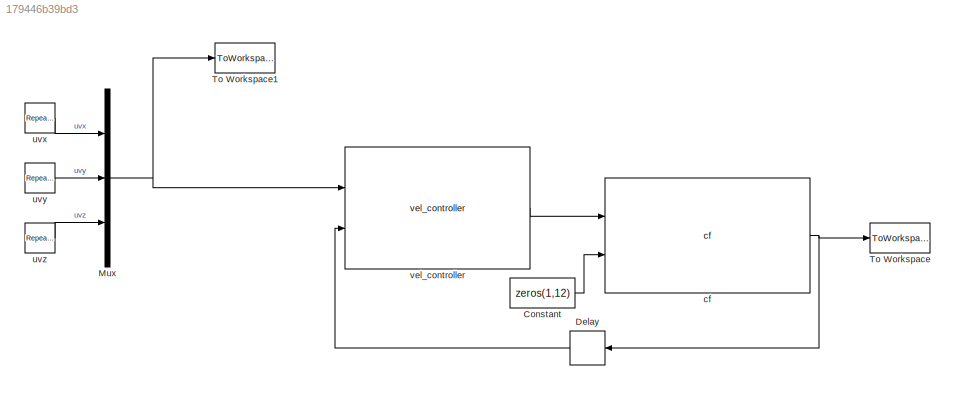
MODEL slx_179446b39bd3
KIND model
CONFIG AbsTol = auto
CONFIG EnableMultiTasking = off
CONFIG FixedStep = continuous_h
CONFIG MaxStep = auto
CONFIG MinStep = auto
CONFIG RelTol = 1e-3
CONFIG SampleTimeConstraint = Unconstrained
CONFIG Solver = FixedStepAuto
CONFIG SolverName = FixedStepAuto
CONFIG StartTime = 0.0
CONFIG StopFcn = res_vel_test = process_vel_testing(vel_state, vel_ref);
CONFIG StopTime = 5.4
BLOCK [Constant] Constant
  Value = zeros(1,12)
BLOCK [Delay] Delay
  DelayLength = 1
  InputPortMap = u0
  Ports = [1, 1]
BLOCK [Mux] Mux
  DisplayOption = bar
  Inputs = 3
  Ports = [3, 1]
BLOCK [ToWorkspace] To Workspace
  FixptAsFi = on
  MaxDataPoints = inf
  Ports = [1]
  SampleTime = -1
  Save2DSignal = 3-D array (concatenate along third dimension)
  SaveFormat = Timeseries
  VariableName = vel_state
BLOCK [ToWorkspace] To Workspace1
  FixptAsFi = on
  MaxDataPoints = inf
  Ports = [1]
  SampleTime = -1
  Save2DSignal = 3-D array (concatenate along third dimension)
  SaveFormat = Timeseries
  VariableName = vel_ref
BLOCK [Reference] cf  REF=cf_lib/cf  (lib defined in slx_a8dafeb2bc56)
  Ports = [2, 1]
  SourceBlock = cf_lib/cf
  SourceType = SubSystem
BLOCK [Reference] uvx  REF=simulink/Sources/Repeating
Sequence
  Ports = [0, 1]
  SourceBlock = simulink/Sources/Repeating\nSequence
  SourceProductBaseCode = SL
  SourceProductName = Simulink
  SourceType = Repeating table
BLOCK [Reference] uvy  REF=simulink/Sources/Repeating
Sequence
  Ports = [0, 1]
  SourceBlock = simulink/Sources/Repeating\nSequence
  SourceProductBaseCode = SL
  SourceProductName = Simulink
  SourceType = Repeating table
BLOCK [Reference] uvz  REF=simulink/Sources/Repeating
Sequence
  Ports = [0, 1]
  SourceBlock = simulink/Sources/Repeating\nSequence
  SourceProductBaseCode = SL
  SourceProductName = Simulink
  SourceType = Repeating table
BLOCK [Reference] vel_controller  REF=vel_controller_lib/vel_controller  (lib defined in slx_bda01cb8c3d0)
  Ports = [2, 1]
  SourceBlock = vel_controller_lib/vel_controller
  SourceType = SubSystem
LINE Constant:1 -> cf:2
LINE Delay:1 -> vel_controller:2
NET Mux:1 -> To Workspace1:1, vel_controller:1
NET cf:1 -> Delay:1, To Workspace:1
LINE uvx:1 -> Mux:1
LINE uvy:1 -> Mux:2
LINE uvz:1 -> Mux:3
LINE vel_controller:1 -> cf:1
note: NET lines group one-source signal fan-out (src -> all destinations, sorted); 1:1 wires keep LINE
